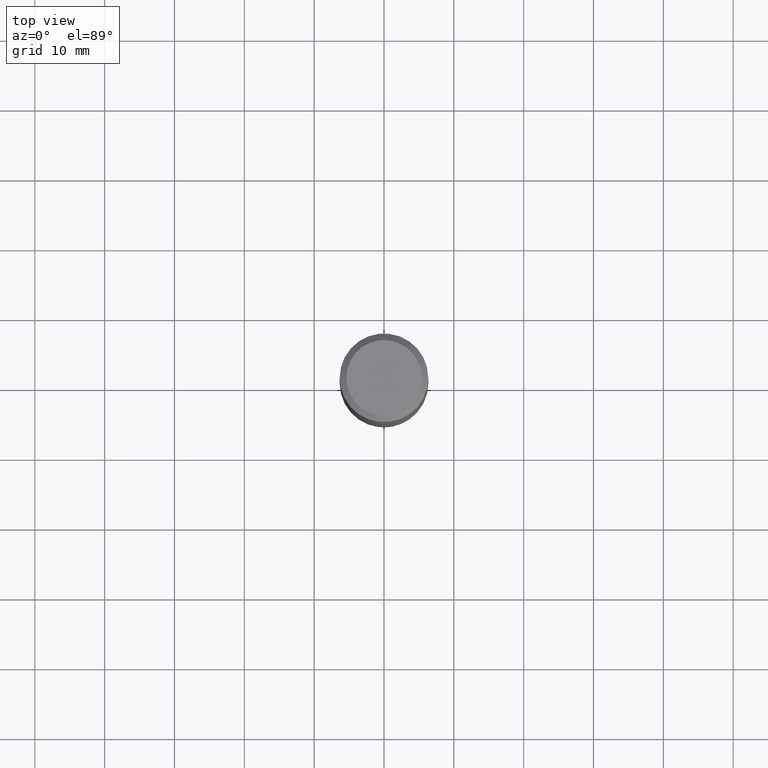
[diagram: clean part render]
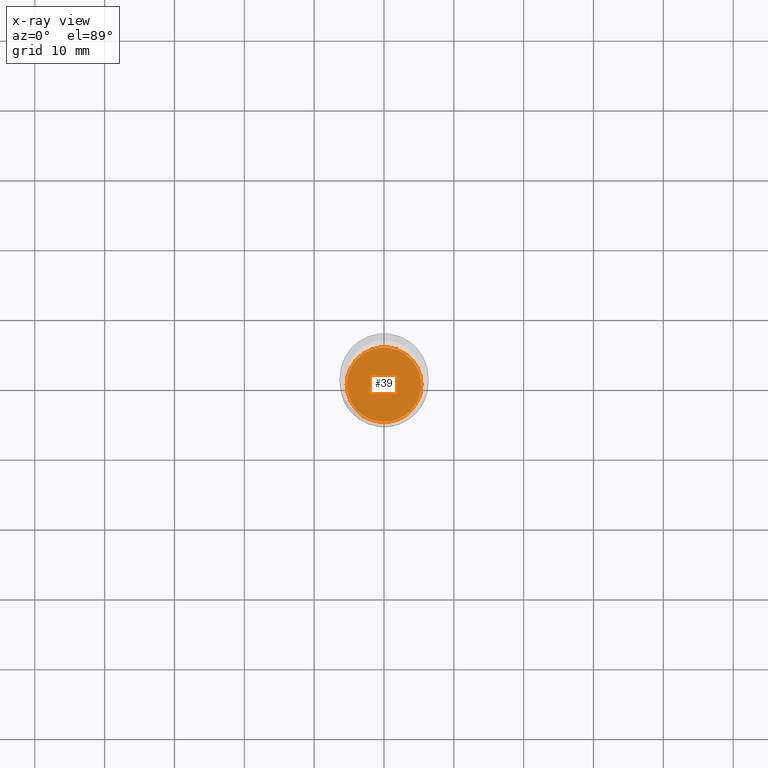
[diagram: x-ray — body ghosted, one internal face saturated and labeled with its STEP entity id]
A machine part, top view, then the same camera in x-ray: the body is ghosted and one INTERNAL B-rep face — a face not visible from any outside direction — is saturated and labeled: STEP entity #39.
In plain terms, the highlighted planar face has unit normal (-0, 0, 1).
Its self-contained STEP definition (entity closure, byte-faithful):
#12 = AXIS2_PLACEMENT_3D ( 'NONE', #174, #398, #353 ) ;
#39 = ADVANCED_FACE ( 'NONE', ( #333 ), #74, .F. ) ;
#43 = VERTEX_POINT ( 'NONE', #234 ) ;
#44 = CIRCLE ( 'NONE', #61, 0.2104499999999999982 ) ;
#61 = AXIS2_PLACEMENT_3D ( 'NONE', #484, #97, #317 ) ;
#74 = PLANE ( 'NONE',  #449 ) ;
#97 = DIRECTION ( 'NONE',  ( -2.445468806185136597E-29, 3.491481338843145583E-15, 1.000000000000000000 ) ) ;
#109 = ORIENTED_EDGE ( 'NONE', *, *, #368, .F. ) ;
#118 = EDGE_LOOP ( 'NONE', ( #109, #485 ) ) ;
#149 = DIRECTION ( 'NONE',  ( 1.000000000000000000, -6.982962677686265922E-15, 4.876176775795935793E-29 ) ) ;
#153 = CARTESIAN_POINT ( 'NONE',  ( 5.616997300926640597E-29, -8.019583487188821005E-15, -2.296899999999999942 ) ) ;
#174 = CARTESIAN_POINT ( 'NONE',  ( 5.616997300926640597E-29, -8.019583487188821005E-15, -2.296899999999999942 ) ) ;
#234 = CARTESIAN_POINT ( 'NONE',  ( -0.2104499999999999982, -6.521597072607580356E-15, -2.296899999999999942 ) ) ;
#296 = VERTEX_POINT ( 'NONE', #315 ) ;
#315 = CARTESIAN_POINT ( 'NONE',  ( 0.2104499999999999982, -9.489147982707895563E-15, -2.296899999999999942 ) ) ;
#317 = DIRECTION ( 'NONE',  ( 1.000000000000000000, -6.982962677686264344E-15, 0.000000000000000000 ) ) ;
#333 = FACE_OUTER_BOUND ( 'NONE', #118, .T. ) ;
#353 = DIRECTION ( 'NONE',  ( 1.000000000000000000, -6.982962677686264344E-15, 0.000000000000000000 ) ) ;
#368 = EDGE_CURVE ( 'NONE', #296, #43, #44, .T. ) ;
#371 = CIRCLE ( 'NONE', #12, 0.2104499999999999982 ) ;
#372 = DIRECTION ( 'NONE',  ( -2.438088387897960049E-29, 3.491481338843145188E-15, 1.000000000000000000 ) ) ;
#398 = DIRECTION ( 'NONE',  ( -2.445468806185136597E-29, 3.491481338843145583E-15, 1.000000000000000000 ) ) ;
#449 = AXIS2_PLACEMENT_3D ( 'NONE', #153, #372, #149 ) ;
#469 = EDGE_CURVE ( 'NONE', #43, #296, #371, .T. ) ;
#484 = CARTESIAN_POINT ( 'NONE',  ( 5.616997300926640597E-29, -8.019583487188821005E-15, -2.296899999999999942 ) ) ;
#485 = ORIENTED_EDGE ( 'NONE', *, *, #469, .F. ) ;